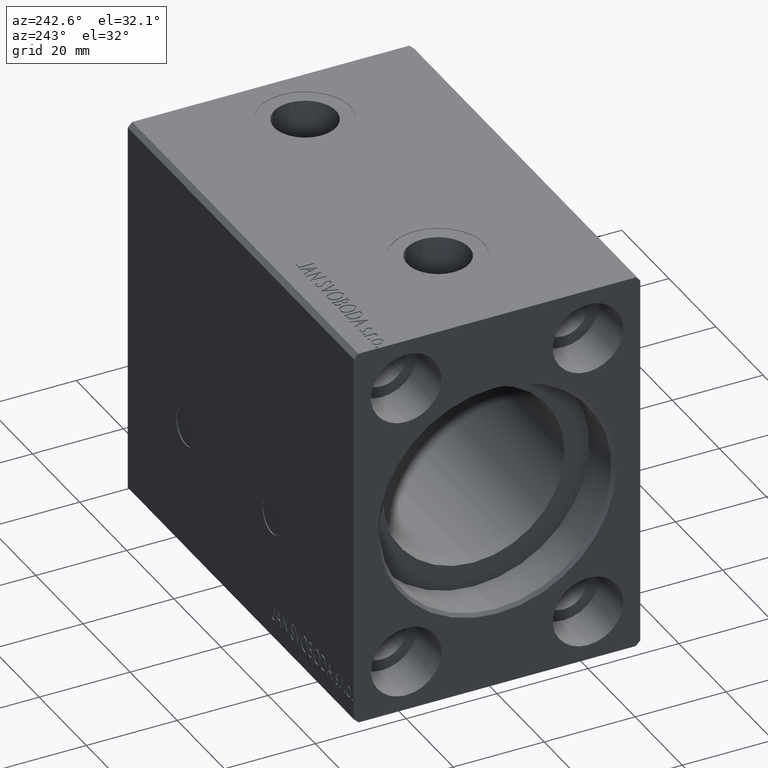
[diagram: clean part render]
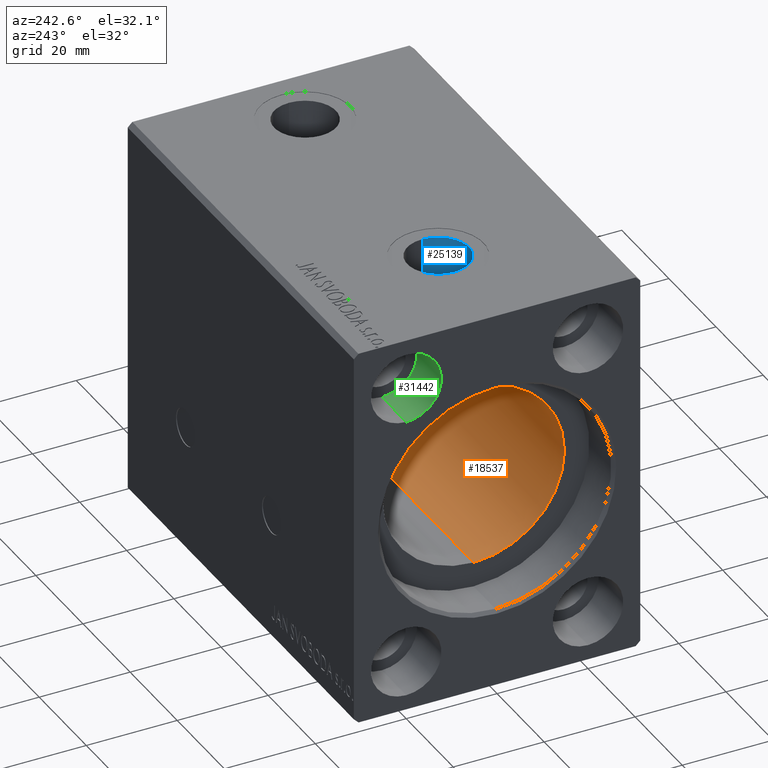
[diagram: same view with three faces highlighted in distinct colors, each labeled with its STEP entity id]
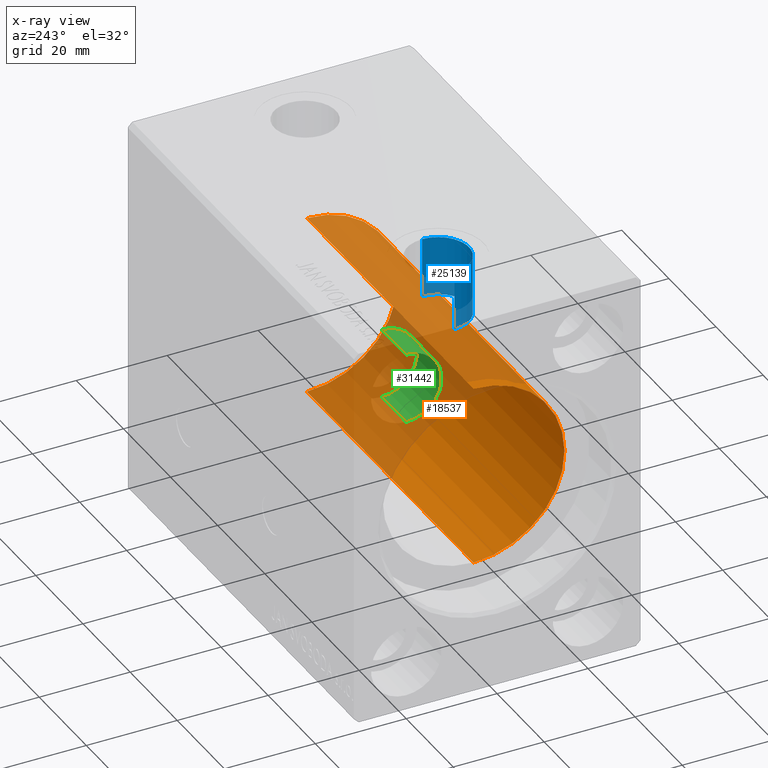
[diagram: x-ray of the same camera — body ghosted, the three highlighted faces saturated]
A machine part, auxiliary view with three faces highlighted in distinct colors.
The next image is the same camera in x-ray (body ghosted, the three faces saturated) — at least one of them is partly hidden behind the body in this view.
Their STEP definitions:

[orange] entity #18537 — the highlighted cylindrical surface (partial cylindrical patch) has radius 20 mm, axis along (-1, -0, -0).
#249 = CARTESIAN_POINT ( 'NONE',  ( 9.999999999999994671, 0.000000000000000000, 20.00000000000000000 ) ) ;
#549 = CARTESIAN_POINT ( 'NONE',  ( 80.70000000000000284, 0.000000000000000000, 20.00000000000000000 ) ) ;
#2035 = ORIENTED_EDGE ( 'NONE', *, *, #6800, .F. ) ;
#3714 = VERTEX_POINT ( 'NONE', #549 ) ;
#6800 = EDGE_CURVE ( 'NONE', #3714, #36073, #22773, .T. ) ;
#7542 = DIRECTION ( 'NONE',  ( 0.000000000000000000, 0.000000000000000000, 1.000000000000000000 ) ) ;
#7905 = LINE ( 'NONE', #20369, #12182 ) ;
#8528 = DIRECTION ( 'NONE',  ( 0.000000000000000000, 0.000000000000000000, 1.000000000000000000 ) ) ;
#11375 = AXIS2_PLACEMENT_3D ( 'NONE', #26452, #36125, #7542 ) ;
#11894 = CIRCLE ( 'NONE', #31129, 20.00000000000000000 ) ;
#11963 = DIRECTION ( 'NONE',  ( -1.000000000000000000, 0.000000000000000000, 0.000000000000000000 ) ) ;
#12182 = VECTOR ( 'NONE', #23382, 1000.000000000000000 ) ;
#13922 = CARTESIAN_POINT ( 'NONE',  ( 80.70000000000000284, 2.449293598294706513E-15, -20.00000000000000000 ) ) ;
#14727 = FACE_OUTER_BOUND ( 'NONE', #32553, .T. ) ;
#15594 = CARTESIAN_POINT ( 'NONE',  ( 9.999999999999994671, 2.449293598294706513E-15, -20.00000000000000000 ) ) ;
#17395 = VERTEX_POINT ( 'NONE', #15594 ) ;
#18537 = ADVANCED_FACE ( 'NONE', ( #14727 ), #22017, .F. ) ;
#20369 = CARTESIAN_POINT ( 'NONE',  ( 80.70000000000000284, 2.449293598294706513E-15, -20.00000000000000000 ) ) ;
#21645 = CARTESIAN_POINT ( 'NONE',  ( 9.999999999999994671, 0.000000000000000000, 0.000000000000000000 ) ) ;
#22017 = CYLINDRICAL_SURFACE ( 'NONE', #35995, 20.00000000000000000 ) ;
#22076 = EDGE_CURVE ( 'NONE', #34101, #3714, #31931, .T. ) ;
#22773 = LINE ( 'NONE', #25989, #32365 ) ;
#23382 = DIRECTION ( 'NONE',  ( -1.000000000000000000, -0.000000000000000000, -0.000000000000000000 ) ) ;
#25989 = CARTESIAN_POINT ( 'NONE',  ( 80.70000000000000284, 0.000000000000000000, 20.00000000000000000 ) ) ;
#26452 = CARTESIAN_POINT ( 'NONE',  ( 80.70000000000000284, 0.000000000000000000, 0.000000000000000000 ) ) ;
#27123 = ORIENTED_EDGE ( 'NONE', *, *, #42288, .T. ) ;
#29008 = DIRECTION ( 'NONE',  ( -1.000000000000000000, -0.000000000000000000, -0.000000000000000000 ) ) ;
#31129 = AXIS2_PLACEMENT_3D ( 'NONE', #21645, #11963, #8528 ) ;
#31477 = CARTESIAN_POINT ( 'NONE',  ( 80.70000000000000284, 0.000000000000000000, 0.000000000000000000 ) ) ;
#31931 = CIRCLE ( 'NONE', #11375, 20.00000000000000000 ) ;
#32365 = VECTOR ( 'NONE', #29008, 1000.000000000000000 ) ;
#32553 = EDGE_LOOP ( 'NONE', ( #40838, #33805, #27123, #2035 ) ) ;
#33429 = EDGE_CURVE ( 'NONE', #34101, #17395, #7905, .T. ) ;
#33805 = ORIENTED_EDGE ( 'NONE', *, *, #33429, .T. ) ;
#34101 = VERTEX_POINT ( 'NONE', #13922 ) ;
#35995 = AXIS2_PLACEMENT_3D ( 'NONE', #31477, #40925, #41761 ) ;
#36073 = VERTEX_POINT ( 'NONE', #249 ) ;
#36125 = DIRECTION ( 'NONE',  ( -1.000000000000000000, 0.000000000000000000, 0.000000000000000000 ) ) ;
#40838 = ORIENTED_EDGE ( 'NONE', *, *, #22076, .F. ) ;
#40925 = DIRECTION ( 'NONE',  ( -1.000000000000000000, -0.000000000000000000, -0.000000000000000000 ) ) ;
#41761 = DIRECTION ( 'NONE',  ( 0.000000000000000000, 0.000000000000000000, 1.000000000000000000 ) ) ;
#42288 = EDGE_CURVE ( 'NONE', #17395, #36073, #11894, .T. ) ;

[blue] entity #25139 — the highlighted cylindrical surface (edge-blend (fillet) strip) has radius 6.8 mm, axis along (-0, -0, 1).
#436 = CYLINDRICAL_SURFACE ( 'NONE', #18995, 6.800000000000000711 ) ;
#448 = CARTESIAN_POINT ( 'NONE',  ( 18.19999999999999929, 1.700121561408603067E-15, 29.23999999999999488 ) ) ;
#957 = VERTEX_POINT ( 'NONE', #448 ) ;
#6675 = DIRECTION ( 'NONE',  ( 1.000000000000000000, 0.000000000000000000, 0.000000000000000000 ) ) ;
#8127 = EDGE_CURVE ( 'NONE', #957, #11408, #28305, .T. ) ;
#8314 = EDGE_CURVE ( 'NONE', #11408, #16412, #28018, .T. ) ;
#8705 = DIRECTION ( 'NONE',  ( 0.000000000000000000, 0.000000000000000000, 1.000000000000000000 ) ) ;
#9687 = DIRECTION ( 'NONE',  ( -0.000000000000000000, -0.000000000000000000, 1.000000000000000000 ) ) ;
#9908 = CARTESIAN_POINT ( 'NONE',  ( 18.20000000000000284, 1.700121561408602870E-15, 29.23999999999999488 ) ) ;
#10358 = CARTESIAN_POINT ( 'NONE',  ( 25.00000000000000000, 8.673617379884031528E-16, 42.39999999999999147 ) ) ;
#11408 = VERTEX_POINT ( 'NONE', #28818 ) ;
#12552 = DIRECTION ( 'NONE',  ( 1.000000000000000000, 0.000000000000000000, 0.000000000000000000 ) ) ;
#15347 = CIRCLE ( 'NONE', #37321, 6.800000000000000711 ) ;
#16412 = VERTEX_POINT ( 'NONE', #19718 ) ;
#16611 = EDGE_CURVE ( 'NONE', #27429, #16412, #15347, .T. ) ;
#17125 = DIRECTION ( 'NONE',  ( -0.000000000000000000, -0.000000000000000000, 1.000000000000000000 ) ) ;
#18855 = ORIENTED_EDGE ( 'NONE', *, *, #20386, .T. ) ;
#18884 = ORIENTED_EDGE ( 'NONE', *, *, #16611, .T. ) ;
#18995 = AXIS2_PLACEMENT_3D ( 'NONE', #39752, #36113, #6675 ) ;
#19718 = CARTESIAN_POINT ( 'NONE',  ( 31.80000000000000071, 8.673617379884031528E-16, 42.39999999999999147 ) ) ;
#19857 = ORIENTED_EDGE ( 'NONE', *, *, #8127, .F. ) ;
#20008 = LINE ( 'NONE', #9908, #27098 ) ;
#20386 = EDGE_CURVE ( 'NONE', #957, #27429, #20008, .T. ) ;
#23050 = DIRECTION ( 'NONE',  ( 0.000000000000000000, 0.000000000000000000, 1.000000000000000000 ) ) ;
#24819 = CARTESIAN_POINT ( 'NONE',  ( 25.00000000000000000, 8.673617379884031528E-16, 29.23999999999999488 ) ) ;
#25139 = ADVANCED_FACE ( 'NONE', ( #30095 ), #436, .F. ) ;
#27098 = VECTOR ( 'NONE', #9687, 1000.000000000000000 ) ;
#27429 = VERTEX_POINT ( 'NONE', #29791 ) ;
#28018 = LINE ( 'NONE', #31440, #41988 ) ;
#28305 = CIRCLE ( 'NONE', #37225, 6.800000000000000711 ) ;
#28746 = EDGE_LOOP ( 'NONE', ( #19857, #18855, #18884, #37009 ) ) ;
#28818 = CARTESIAN_POINT ( 'NONE',  ( 31.80000000000000071, 8.673617379884031528E-16, 29.23999999999999488 ) ) ;
#29791 = CARTESIAN_POINT ( 'NONE',  ( 18.19999999999999929, 1.700121561408603067E-15, 42.39999999999999147 ) ) ;
#30095 = FACE_OUTER_BOUND ( 'NONE', #28746, .T. ) ;
#31440 = CARTESIAN_POINT ( 'NONE',  ( 31.80000000000000071, 8.673617379884031528E-16, 29.23999999999999488 ) ) ;
#35938 = DIRECTION ( 'NONE',  ( 1.000000000000000000, 0.000000000000000000, 0.000000000000000000 ) ) ;
#36113 = DIRECTION ( 'NONE',  ( -0.000000000000000000, -0.000000000000000000, 1.000000000000000000 ) ) ;
#37009 = ORIENTED_EDGE ( 'NONE', *, *, #8314, .F. ) ;
#37225 = AXIS2_PLACEMENT_3D ( 'NONE', #24819, #8705, #12552 ) ;
#37321 = AXIS2_PLACEMENT_3D ( 'NONE', #10358, #23050, #35938 ) ;
#39752 = CARTESIAN_POINT ( 'NONE',  ( 25.00000000000000000, 8.673617379884031528E-16, 29.23999999999999488 ) ) ;
#41988 = VECTOR ( 'NONE', #17125, 1000.000000000000000 ) ;

[green] entity #31442 — the highlighted cylindrical surface (partial cylindrical patch) has radius 7.75 mm, axis along (-1, -0, -0).
#2544 = AXIS2_PLACEMENT_3D ( 'NONE', #22617, #22401, #19177 ) ;
#3583 = CARTESIAN_POINT ( 'NONE',  ( 0.000000000000000000, 20.00000000000000355, 39.25000000000001421 ) ) ;
#4532 = EDGE_CURVE ( 'NONE', #26114, #31955, #6097, .T. ) ;
#4822 = DIRECTION ( 'NONE',  ( 1.000000000000000000, -0.000000000000000000, -0.000000000000000000 ) ) ;
#5228 = CARTESIAN_POINT ( 'NONE',  ( 10.33000000000000007, 20.00000000000000355, 23.75000000000001421 ) ) ;
#5407 = EDGE_CURVE ( 'NONE', #31955, #9083, #18636, .T. ) ;
#5436 = DIRECTION ( 'NONE',  ( -1.000000000000000000, -0.000000000000000000, -0.000000000000000000 ) ) ;
#6097 = LINE ( 'NONE', #21808, #19995 ) ;
#8030 = CARTESIAN_POINT ( 'NONE',  ( 0.000000000000000000, 20.00000000000000355, 31.50000000000001421 ) ) ;
#9083 = VERTEX_POINT ( 'NONE', #25678 ) ;
#9610 = CARTESIAN_POINT ( 'NONE',  ( 10.33000000000000007, 20.00000000000000355, 23.75000000000001421 ) ) ;
#10012 = AXIS2_PLACEMENT_3D ( 'NONE', #17934, #4822, #17290 ) ;
#10143 = CYLINDRICAL_SURFACE ( 'NONE', #2544, 7.750000000000000000 ) ;
#12538 = DIRECTION ( 'NONE',  ( -1.000000000000000000, -0.000000000000000000, -0.000000000000000000 ) ) ;
#17052 = ORIENTED_EDGE ( 'NONE', *, *, #23548, .T. ) ;
#17290 = DIRECTION ( 'NONE',  ( 0.000000000000000000, 0.000000000000000000, -1.000000000000000000 ) ) ;
#17934 = CARTESIAN_POINT ( 'NONE',  ( 10.33000000000000007, 20.00000000000000355, 31.50000000000001421 ) ) ;
#18636 = CIRCLE ( 'NONE', #35780, 7.750000000000000000 ) ;
#19177 = DIRECTION ( 'NONE',  ( 0.000000000000000000, 0.000000000000000000, 1.000000000000000000 ) ) ;
#19995 = VECTOR ( 'NONE', #12538, 1000.000000000000000 ) ;
#20316 = EDGE_LOOP ( 'NONE', ( #17052, #37434, #32866, #38268 ) ) ;
#20500 = DIRECTION ( 'NONE',  ( 1.000000000000000000, -0.000000000000000000, -0.000000000000000000 ) ) ;
#20709 = DIRECTION ( 'NONE',  ( 0.000000000000000000, 0.000000000000000000, -1.000000000000000000 ) ) ;
#21808 = CARTESIAN_POINT ( 'NONE',  ( 10.33000000000000007, 20.00000000000000355, 39.25000000000001421 ) ) ;
#22401 = DIRECTION ( 'NONE',  ( -1.000000000000000000, -0.000000000000000000, -0.000000000000000000 ) ) ;
#22617 = CARTESIAN_POINT ( 'NONE',  ( 10.33000000000000007, 20.00000000000000355, 31.50000000000001421 ) ) ;
#23548 = EDGE_CURVE ( 'NONE', #26114, #31860, #31306, .T. ) ;
#23660 = CARTESIAN_POINT ( 'NONE',  ( 10.33000000000000007, 20.00000000000000355, 39.25000000000001421 ) ) ;
#25255 = VECTOR ( 'NONE', #5436, 1000.000000000000000 ) ;
#25678 = CARTESIAN_POINT ( 'NONE',  ( 0.000000000000000000, 20.00000000000000355, 23.75000000000001421 ) ) ;
#26114 = VERTEX_POINT ( 'NONE', #23660 ) ;
#29486 = FACE_OUTER_BOUND ( 'NONE', #20316, .T. ) ;
#29797 = EDGE_CURVE ( 'NONE', #31860, #9083, #38090, .T. ) ;
#31306 = CIRCLE ( 'NONE', #10012, 7.750000000000000000 ) ;
#31442 = ADVANCED_FACE ( 'NONE', ( #29486 ), #10143, .F. ) ;
#31860 = VERTEX_POINT ( 'NONE', #9610 ) ;
#31955 = VERTEX_POINT ( 'NONE', #3583 ) ;
#32866 = ORIENTED_EDGE ( 'NONE', *, *, #5407, .F. ) ;
#35780 = AXIS2_PLACEMENT_3D ( 'NONE', #8030, #20500, #20709 ) ;
#37434 = ORIENTED_EDGE ( 'NONE', *, *, #29797, .T. ) ;
#38090 = LINE ( 'NONE', #5228, #25255 ) ;
#38268 = ORIENTED_EDGE ( 'NONE', *, *, #4532, .F. ) ;